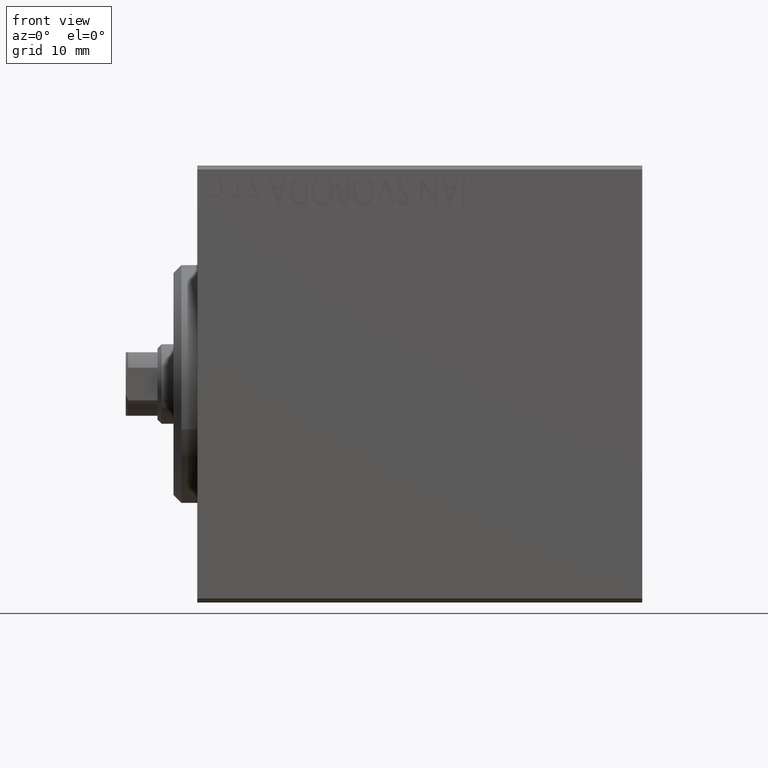
[diagram: clean part render]
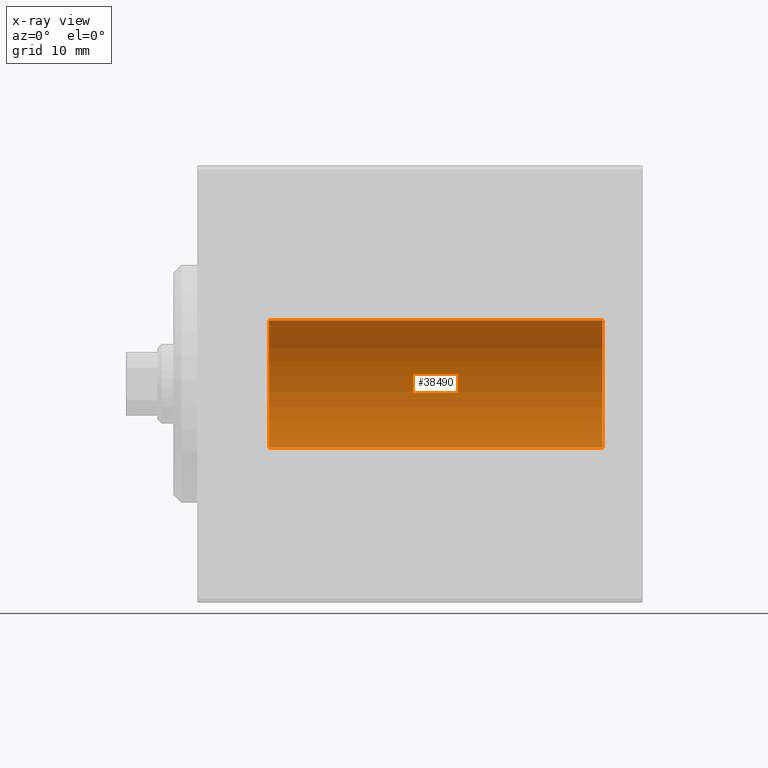
[diagram: x-ray — body ghosted, one internal face saturated and labeled with its STEP entity id]
A machine part, front view, then the same camera in x-ray: the body is ghosted and one INTERNAL B-rep face — a face not visible from any outside direction — is saturated and labeled: STEP entity #38490.
In plain terms, the highlighted cylindrical surface (partial cylindrical patch) has radius 8 mm, axis along (-1, -0, -0).
Its self-contained STEP definition (entity closure, byte-faithful):
#777 = ORIENTED_EDGE ( 'NONE', *, *, #17048, .T. ) ;
#1675 = CIRCLE ( 'NONE', #26514, 7.999999999999998224 ) ;
#1882 = ORIENTED_EDGE ( 'NONE', *, *, #14512, .T. ) ;
#2237 = DIRECTION ( 'NONE',  ( -1.000000000000000000, 0.000000000000000000, 0.000000000000000000 ) ) ;
#4196 = AXIS2_PLACEMENT_3D ( 'NONE', #6209, #22418, #25751 ) ;
#5788 = DIRECTION ( 'NONE',  ( -1.000000000000000000, -0.000000000000000000, -0.000000000000000000 ) ) ;
#5987 = VECTOR ( 'NONE', #5788, 1000.000000000000000 ) ;
#6209 = CARTESIAN_POINT ( 'NONE',  ( 51.00000000000000000, 0.000000000000000000, 0.000000000000000000 ) ) ;
#7685 = VERTEX_POINT ( 'NONE', #15352 ) ;
#8131 = CARTESIAN_POINT ( 'NONE',  ( 51.00000000000000000, 0.000000000000000000, 0.000000000000000000 ) ) ;
#12504 = EDGE_CURVE ( 'NONE', #40512, #7685, #19106, .T. ) ;
#13968 = CARTESIAN_POINT ( 'NONE',  ( 51.00000000000000000, 0.000000000000000000, 7.999999999999998224 ) ) ;
#14464 = EDGE_CURVE ( 'NONE', #17437, #40512, #1675, .T. ) ;
#14512 = EDGE_CURVE ( 'NONE', #42524, #7685, #41411, .T. ) ;
#15352 = CARTESIAN_POINT ( 'NONE',  ( 9.000000000000001776, 9.797174393178823685E-16, -7.999999999999998224 ) ) ;
#17048 = EDGE_CURVE ( 'NONE', #17437, #42524, #29097, .T. ) ;
#17437 = VERTEX_POINT ( 'NONE', #13968 ) ;
#18551 = CARTESIAN_POINT ( 'NONE',  ( 51.00000000000000000, 9.797174393178823685E-16, -7.999999999999998224 ) ) ;
#19106 = LINE ( 'NONE', #43076, #33551 ) ;
#19573 = CARTESIAN_POINT ( 'NONE',  ( 9.000000000000001776, 0.000000000000000000, 0.000000000000000000 ) ) ;
#19700 = CARTESIAN_POINT ( 'NONE',  ( 9.000000000000001776, 0.000000000000000000, 7.999999999999998224 ) ) ;
#22254 = AXIS2_PLACEMENT_3D ( 'NONE', #19573, #2237, #33110 ) ;
#22418 = DIRECTION ( 'NONE',  ( -1.000000000000000000, -0.000000000000000000, -0.000000000000000000 ) ) ;
#22639 = FACE_OUTER_BOUND ( 'NONE', #32352, .T. ) ;
#25751 = DIRECTION ( 'NONE',  ( 0.000000000000000000, 0.000000000000000000, 1.000000000000000000 ) ) ;
#26514 = AXIS2_PLACEMENT_3D ( 'NONE', #8131, #39321, #35994 ) ;
#28669 = CARTESIAN_POINT ( 'NONE',  ( 51.00000000000000000, 0.000000000000000000, 7.999999999999998224 ) ) ;
#29097 = LINE ( 'NONE', #28669, #5987 ) ;
#32185 = CYLINDRICAL_SURFACE ( 'NONE', #4196, 7.999999999999998224 ) ;
#32352 = EDGE_LOOP ( 'NONE', ( #42194, #37647, #777, #1882 ) ) ;
#32646 = DIRECTION ( 'NONE',  ( -1.000000000000000000, -0.000000000000000000, -0.000000000000000000 ) ) ;
#33110 = DIRECTION ( 'NONE',  ( 0.000000000000000000, 0.000000000000000000, 1.000000000000000000 ) ) ;
#33551 = VECTOR ( 'NONE', #32646, 1000.000000000000000 ) ;
#35994 = DIRECTION ( 'NONE',  ( 0.000000000000000000, 0.000000000000000000, 1.000000000000000000 ) ) ;
#37647 = ORIENTED_EDGE ( 'NONE', *, *, #14464, .F. ) ;
#38490 = ADVANCED_FACE ( 'NONE', ( #22639 ), #32185, .F. ) ;
#39321 = DIRECTION ( 'NONE',  ( -1.000000000000000000, 0.000000000000000000, 0.000000000000000000 ) ) ;
#40512 = VERTEX_POINT ( 'NONE', #18551 ) ;
#41411 = CIRCLE ( 'NONE', #22254, 7.999999999999998224 ) ;
#42194 = ORIENTED_EDGE ( 'NONE', *, *, #12504, .F. ) ;
#42524 = VERTEX_POINT ( 'NONE', #19700 ) ;
#43076 = CARTESIAN_POINT ( 'NONE',  ( 51.00000000000000000, 9.797174393178823685E-16, -7.999999999999998224 ) ) ;